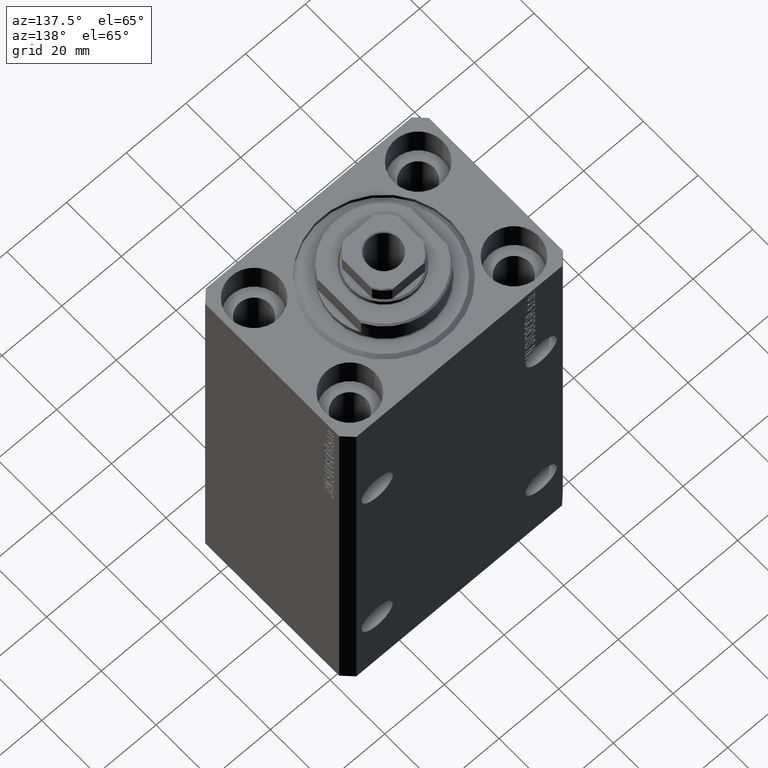
[diagram: clean part render]
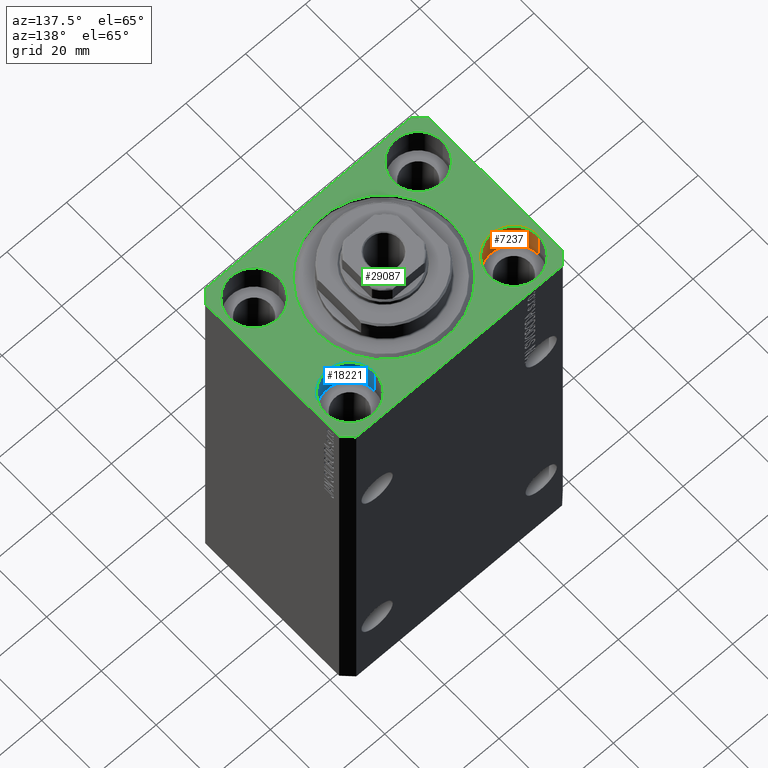
[diagram: same view with three faces highlighted in distinct colors, each labeled with its STEP entity id]
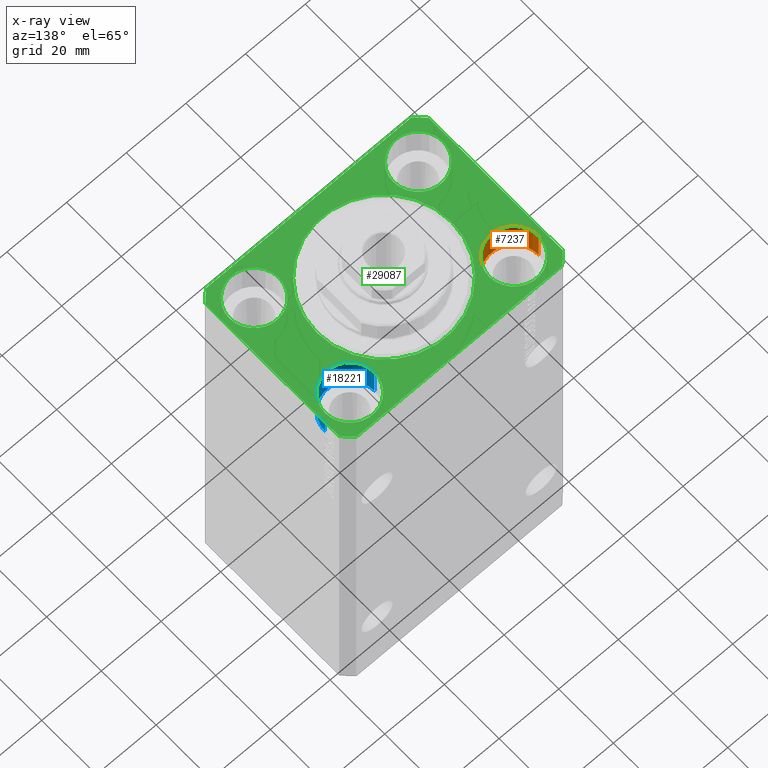
[diagram: x-ray of the same camera — body ghosted, the three highlighted faces saturated]
A machine part, auxiliary view with three faces highlighted in distinct colors.
The next image is the same camera in x-ray (body ghosted, the three faces saturated) — at least one of them is partly hidden behind the body in this view.
Their STEP definitions:

[orange] entity #7237 — the highlighted cylindrical surface (edge-blend (fillet) strip) has radius 8.25 mm, axis along (0, 0, 1).
#108 = VERTEX_POINT ( 'NONE', #33419 ) ;
#611 = CIRCLE ( 'NONE', #20070, 8.250000000000000000 ) ;
#1077 = VECTOR ( 'NONE', #43114, 1000.000000000000000 ) ;
#1183 = CYLINDRICAL_SURFACE ( 'NONE', #14915, 8.250000000000000000 ) ;
#1391 = LINE ( 'NONE', #21937, #1077 ) ;
#3877 = DIRECTION ( 'NONE',  ( 1.000000000000000000, 0.000000000000000000, 0.000000000000000000 ) ) ;
#5709 = ORIENTED_EDGE ( 'NONE', *, *, #39233, .F. ) ;
#7237 = ADVANCED_FACE ( 'NONE', ( #28927 ), #1183, .F. ) ;
#7964 = DIRECTION ( 'NONE',  ( -0.000000000000000000, -0.000000000000000000, 1.000000000000000000 ) ) ;
#8466 = DIRECTION ( 'NONE',  ( 1.000000000000000000, 0.000000000000000000, 0.000000000000000000 ) ) ;
#10649 = EDGE_LOOP ( 'NONE', ( #44533, #36818, #20490, #5709 ) ) ;
#10757 = EDGE_CURVE ( 'NONE', #28413, #15345, #611, .T. ) ;
#10841 = VECTOR ( 'NONE', #7964, 1000.000000000000000 ) ;
#11197 = DIRECTION ( 'NONE',  ( 0.000000000000000000, 0.000000000000000000, 1.000000000000000000 ) ) ;
#13598 = CARTESIAN_POINT ( 'NONE',  ( -35.75000000000000711, 17.50000000000000000, 0.000000000000000000 ) ) ;
#14915 = AXIS2_PLACEMENT_3D ( 'NONE', #22157, #18104, #3877 ) ;
#14996 = VERTEX_POINT ( 'NONE', #16409 ) ;
#15155 = AXIS2_PLACEMENT_3D ( 'NONE', #18126, #24678, #25358 ) ;
#15345 = VERTEX_POINT ( 'NONE', #24471 ) ;
#16409 = CARTESIAN_POINT ( 'NONE',  ( -19.25000000000000355, 17.50000000000000000, -11.00000000000000000 ) ) ;
#18104 = DIRECTION ( 'NONE',  ( -0.000000000000000000, -0.000000000000000000, 1.000000000000000000 ) ) ;
#18126 = CARTESIAN_POINT ( 'NONE',  ( -27.50000000000000355, 17.50000000000000000, -11.00000000000000000 ) ) ;
#20070 = AXIS2_PLACEMENT_3D ( 'NONE', #39599, #11197, #8466 ) ;
#20449 = EDGE_CURVE ( 'NONE', #108, #14996, #25298, .T. ) ;
#20490 = ORIENTED_EDGE ( 'NONE', *, *, #10757, .T. ) ;
#20495 = EDGE_CURVE ( 'NONE', #108, #28413, #28515, .T. ) ;
#21937 = CARTESIAN_POINT ( 'NONE',  ( -19.25000000000000355, 17.50000000000000000, -11.00000000000000000 ) ) ;
#22157 = CARTESIAN_POINT ( 'NONE',  ( -27.50000000000000355, 17.50000000000000000, -11.00000000000000000 ) ) ;
#24471 = CARTESIAN_POINT ( 'NONE',  ( -19.25000000000000355, 17.50000000000000000, 0.000000000000000000 ) ) ;
#24678 = DIRECTION ( 'NONE',  ( 0.000000000000000000, 0.000000000000000000, 1.000000000000000000 ) ) ;
#25298 = CIRCLE ( 'NONE', #15155, 8.250000000000000000 ) ;
#25358 = DIRECTION ( 'NONE',  ( 1.000000000000000000, 0.000000000000000000, 0.000000000000000000 ) ) ;
#28413 = VERTEX_POINT ( 'NONE', #13598 ) ;
#28515 = LINE ( 'NONE', #39102, #10841 ) ;
#28927 = FACE_OUTER_BOUND ( 'NONE', #10649, .T. ) ;
#33419 = CARTESIAN_POINT ( 'NONE',  ( -35.75000000000000711, 17.50000000000000000, -11.00000000000000000 ) ) ;
#36818 = ORIENTED_EDGE ( 'NONE', *, *, #20495, .T. ) ;
#39102 = CARTESIAN_POINT ( 'NONE',  ( -35.75000000000000711, 17.50000000000000000, -11.00000000000000000 ) ) ;
#39233 = EDGE_CURVE ( 'NONE', #14996, #15345, #1391, .T. ) ;
#39599 = CARTESIAN_POINT ( 'NONE',  ( -27.50000000000000355, 17.50000000000000000, 0.000000000000000000 ) ) ;
#43114 = DIRECTION ( 'NONE',  ( -0.000000000000000000, -0.000000000000000000, 1.000000000000000000 ) ) ;
#44533 = ORIENTED_EDGE ( 'NONE', *, *, #20449, .F. ) ;

[blue] entity #18221 — the highlighted cylindrical surface (edge-blend (fillet) strip) has radius 8.25 mm, axis along (0, 0, 1).
#815 = ORIENTED_EDGE ( 'NONE', *, *, #6433, .T. ) ;
#1554 = LINE ( 'NONE', #25055, #19229 ) ;
#6174 = CARTESIAN_POINT ( 'NONE',  ( 19.25000000000000000, 17.50000000000001066, 0.000000000000000000 ) ) ;
#6433 = EDGE_CURVE ( 'NONE', #34711, #41039, #1554, .T. ) ;
#8231 = DIRECTION ( 'NONE',  ( -0.000000000000000000, -0.000000000000000000, 1.000000000000000000 ) ) ;
#8455 = CYLINDRICAL_SURFACE ( 'NONE', #33835, 8.249999999999992895 ) ;
#9009 = EDGE_CURVE ( 'NONE', #39227, #33897, #30535, .T. ) ;
#12625 = EDGE_CURVE ( 'NONE', #34711, #39227, #43175, .T. ) ;
#16767 = DIRECTION ( 'NONE',  ( -0.000000000000000000, -0.000000000000000000, 1.000000000000000000 ) ) ;
#17966 = AXIS2_PLACEMENT_3D ( 'NONE', #40834, #23470, #44204 ) ;
#18221 = ADVANCED_FACE ( 'NONE', ( #21566 ), #8455, .F. ) ;
#19229 = VECTOR ( 'NONE', #39237, 1000.000000000000000 ) ;
#19334 = VECTOR ( 'NONE', #16767, 1000.000000000000000 ) ;
#20666 = AXIS2_PLACEMENT_3D ( 'NONE', #38193, #35027, #35251 ) ;
#21540 = ORIENTED_EDGE ( 'NONE', *, *, #12625, .F. ) ;
#21566 = FACE_OUTER_BOUND ( 'NONE', #32141, .T. ) ;
#22154 = CARTESIAN_POINT ( 'NONE',  ( 35.74999999999999289, 17.50000000000001066, -11.00000000000000000 ) ) ;
#23470 = DIRECTION ( 'NONE',  ( 0.000000000000000000, 0.000000000000000000, 1.000000000000000000 ) ) ;
#25055 = CARTESIAN_POINT ( 'NONE',  ( 19.25000000000000000, 17.50000000000001066, -11.00000000000000000 ) ) ;
#25346 = ORIENTED_EDGE ( 'NONE', *, *, #43842, .T. ) ;
#25621 = DIRECTION ( 'NONE',  ( 1.000000000000000000, 0.000000000000000000, 0.000000000000000000 ) ) ;
#27139 = CIRCLE ( 'NONE', #20666, 8.249999999999992895 ) ;
#28565 = CARTESIAN_POINT ( 'NONE',  ( 27.49999999999999645, 17.50000000000001066, -11.00000000000000000 ) ) ;
#30535 = LINE ( 'NONE', #44291, #19334 ) ;
#32141 = EDGE_LOOP ( 'NONE', ( #21540, #815, #25346, #33468 ) ) ;
#32681 = CARTESIAN_POINT ( 'NONE',  ( 19.25000000000000000, 17.50000000000001066, -11.00000000000000000 ) ) ;
#33468 = ORIENTED_EDGE ( 'NONE', *, *, #9009, .F. ) ;
#33835 = AXIS2_PLACEMENT_3D ( 'NONE', #28565, #8231, #25621 ) ;
#33897 = VERTEX_POINT ( 'NONE', #40774 ) ;
#34711 = VERTEX_POINT ( 'NONE', #32681 ) ;
#35027 = DIRECTION ( 'NONE',  ( 0.000000000000000000, 0.000000000000000000, 1.000000000000000000 ) ) ;
#35251 = DIRECTION ( 'NONE',  ( 1.000000000000000000, 0.000000000000000000, 0.000000000000000000 ) ) ;
#38193 = CARTESIAN_POINT ( 'NONE',  ( 27.49999999999999645, 17.50000000000001066, 0.000000000000000000 ) ) ;
#39227 = VERTEX_POINT ( 'NONE', #22154 ) ;
#39237 = DIRECTION ( 'NONE',  ( -0.000000000000000000, -0.000000000000000000, 1.000000000000000000 ) ) ;
#40774 = CARTESIAN_POINT ( 'NONE',  ( 35.74999999999999289, 17.50000000000001066, 0.000000000000000000 ) ) ;
#40834 = CARTESIAN_POINT ( 'NONE',  ( 27.49999999999999645, 17.50000000000001066, -11.00000000000000000 ) ) ;
#41039 = VERTEX_POINT ( 'NONE', #6174 ) ;
#43175 = CIRCLE ( 'NONE', #17966, 8.249999999999992895 ) ;
#43842 = EDGE_CURVE ( 'NONE', #41039, #33897, #27139, .T. ) ;
#44204 = DIRECTION ( 'NONE',  ( 1.000000000000000000, 0.000000000000000000, 0.000000000000000000 ) ) ;
#44291 = CARTESIAN_POINT ( 'NONE',  ( 35.74999999999999289, 17.50000000000001066, -11.00000000000000000 ) ) ;

[green] entity #29087 — the highlighted planar face has unit normal (0, 0, 1).
#366 = CARTESIAN_POINT ( 'NONE',  ( -27.50000000000000355, -17.50000000000000000, 0.000000000000000000 ) ) ;
#611 = CIRCLE ( 'NONE', #20070, 8.250000000000000000 ) ;
#1506 = CIRCLE ( 'NONE', #13034, 8.250000000000000000 ) ;
#1514 = CARTESIAN_POINT ( 'NONE',  ( -27.50000000000000355, -17.50000000000000000, 0.000000000000000000 ) ) ;
#1687 = VECTOR ( 'NONE', #28862, 1000.000000000000000 ) ;
#2468 = ORIENTED_EDGE ( 'NONE', *, *, #15636, .F. ) ;
#2538 = DIRECTION ( 'NONE',  ( 1.000000000000000000, 0.000000000000000000, -0.000000000000000000 ) ) ;
#3150 = ORIENTED_EDGE ( 'NONE', *, *, #40686, .F. ) ;
#3697 = ORIENTED_EDGE ( 'NONE', *, *, #17882, .F. ) ;
#3896 = DIRECTION ( 'NONE',  ( -0.7071067811865356934, 0.7071067811865594521, 0.000000000000000000 ) ) ;
#4288 = EDGE_LOOP ( 'NONE', ( #37916, #34695 ) ) ;
#4323 = ORIENTED_EDGE ( 'NONE', *, *, #32306, .T. ) ;
#4760 = VERTEX_POINT ( 'NONE', #19073 ) ;
#5191 = EDGE_LOOP ( 'NONE', ( #13872, #3150 ) ) ;
#5268 = FACE_BOUND ( 'NONE', #5191, .T. ) ;
#5495 = FACE_BOUND ( 'NONE', #9244, .T. ) ;
#5522 = EDGE_CURVE ( 'NONE', #19485, #40955, #28178, .T. ) ;
#5720 = ORIENTED_EDGE ( 'NONE', *, *, #31316, .T. ) ;
#5731 = VERTEX_POINT ( 'NONE', #36602 ) ;
#5930 = FACE_BOUND ( 'NONE', #15360, .T. ) ;
#5995 = VECTOR ( 'NONE', #27518, 1000.000000000000114 ) ;
#6078 = DIRECTION ( 'NONE',  ( 0.000000000000000000, 0.000000000000000000, 1.000000000000000000 ) ) ;
#6107 = EDGE_CURVE ( 'NONE', #37411, #43725, #31025, .T. ) ;
#6174 = CARTESIAN_POINT ( 'NONE',  ( 19.25000000000000000, 17.50000000000001066, 0.000000000000000000 ) ) ;
#6212 = VECTOR ( 'NONE', #31114, 1000.000000000000000 ) ;
#6509 = CIRCLE ( 'NONE', #38843, 8.249999999999992895 ) ;
#6783 = VECTOR ( 'NONE', #23186, 1000.000000000000000 ) ;
#8311 = CARTESIAN_POINT ( 'NONE',  ( 37.49999999999999289, -24.50000000000000000, 0.000000000000000000 ) ) ;
#8433 = VERTEX_POINT ( 'NONE', #37699 ) ;
#8466 = DIRECTION ( 'NONE',  ( 1.000000000000000000, 0.000000000000000000, 0.000000000000000000 ) ) ;
#8504 = DIRECTION ( 'NONE',  ( 0.000000000000000000, 0.000000000000000000, 1.000000000000000000 ) ) ;
#9244 = EDGE_LOOP ( 'NONE', ( #2468, #39018 ) ) ;
#9519 = CARTESIAN_POINT ( 'NONE',  ( 19.25000000000000000, -17.50000000000000000, 0.000000000000000000 ) ) ;
#10757 = EDGE_CURVE ( 'NONE', #28413, #15345, #611, .T. ) ;
#10941 = VERTEX_POINT ( 'NONE', #20187 ) ;
#11047 = CARTESIAN_POINT ( 'NONE',  ( -34.49999999999999289, 27.50000000000000000, 0.000000000000000000 ) ) ;
#11197 = DIRECTION ( 'NONE',  ( 0.000000000000000000, 0.000000000000000000, 1.000000000000000000 ) ) ;
#12666 = DIRECTION ( 'NONE',  ( 1.000000000000000000, 0.000000000000000000, 0.000000000000000000 ) ) ;
#12710 = ORIENTED_EDGE ( 'NONE', *, *, #20899, .T. ) ;
#13034 = AXIS2_PLACEMENT_3D ( 'NONE', #27206, #6078, #44202 ) ;
#13196 = DIRECTION ( 'NONE',  ( 0.000000000000000000, -1.000000000000000000, 0.000000000000000000 ) ) ;
#13335 = CARTESIAN_POINT ( 'NONE',  ( 27.50000000000000355, -17.50000000000000000, 0.000000000000000000 ) ) ;
#13598 = CARTESIAN_POINT ( 'NONE',  ( -35.75000000000000711, 17.50000000000000000, 0.000000000000000000 ) ) ;
#13733 = CARTESIAN_POINT ( 'NONE',  ( 0.000000000000000000, 0.000000000000000000, 0.000000000000000000 ) ) ;
#13749 = LINE ( 'NONE', #34044, #5995 ) ;
#13872 = ORIENTED_EDGE ( 'NONE', *, *, #23905, .F. ) ;
#14125 = CARTESIAN_POINT ( 'NONE',  ( -27.50000000000000355, 17.50000000000000000, 0.000000000000000000 ) ) ;
#14258 = DIRECTION ( 'NONE',  ( 0.000000000000000000, 0.000000000000000000, 1.000000000000000000 ) ) ;
#14291 = CARTESIAN_POINT ( 'NONE',  ( 37.50000000000051870, 24.49999999999995381, 0.000000000000000000 ) ) ;
#14387 = ORIENTED_EDGE ( 'NONE', *, *, #5522, .T. ) ;
#14630 = EDGE_CURVE ( 'NONE', #5731, #16826, #14970, .T. ) ;
#14760 = EDGE_LOOP ( 'NONE', ( #23920, #3697 ) ) ;
#14970 = LINE ( 'NONE', #28525, #36740 ) ;
#15345 = VERTEX_POINT ( 'NONE', #24471 ) ;
#15360 = EDGE_LOOP ( 'NONE', ( #16359, #28753 ) ) ;
#15636 = EDGE_CURVE ( 'NONE', #33897, #41039, #6509, .T. ) ;
#16077 = ORIENTED_EDGE ( 'NONE', *, *, #6107, .T. ) ;
#16080 = PLANE ( 'NONE',  #31977 ) ;
#16230 = CIRCLE ( 'NONE', #31351, 8.250000000000000000 ) ;
#16235 = AXIS2_PLACEMENT_3D ( 'NONE', #13733, #23047, #26658 ) ;
#16359 = ORIENTED_EDGE ( 'NONE', *, *, #27151, .F. ) ;
#16569 = AXIS2_PLACEMENT_3D ( 'NONE', #13335, #30260, #12666 ) ;
#16826 = VERTEX_POINT ( 'NONE', #11047 ) ;
#16840 = DIRECTION ( 'NONE',  ( 0.000000000000000000, 0.000000000000000000, 1.000000000000000000 ) ) ;
#17292 = CIRCLE ( 'NONE', #30971, 22.50000000000000355 ) ;
#17882 = EDGE_CURVE ( 'NONE', #10941, #31021, #17292, .T. ) ;
#18182 = DIRECTION ( 'NONE',  ( 1.000000000000000000, 0.000000000000000000, 0.000000000000000000 ) ) ;
#18449 = DIRECTION ( 'NONE',  ( 0.000000000000000000, 0.000000000000000000, 1.000000000000000000 ) ) ;
#19073 = CARTESIAN_POINT ( 'NONE',  ( 35.75000000000000711, -17.50000000000000000, 0.000000000000000000 ) ) ;
#19266 = FACE_OUTER_BOUND ( 'NONE', #44043, .T. ) ;
#19485 = VERTEX_POINT ( 'NONE', #37864 ) ;
#19702 = CARTESIAN_POINT ( 'NONE',  ( 0.000000000000000000, 0.000000000000000000, 0.000000000000000000 ) ) ;
#19878 = EDGE_CURVE ( 'NONE', #4760, #32123, #36023, .T. ) ;
#20070 = AXIS2_PLACEMENT_3D ( 'NONE', #39599, #11197, #8466 ) ;
#20187 = CARTESIAN_POINT ( 'NONE',  ( -22.50000000000000355, 2.755455298081545172E-15, 0.000000000000000000 ) ) ;
#20369 = DIRECTION ( 'NONE',  ( 1.000000000000000000, 0.000000000000000000, 0.000000000000000000 ) ) ;
#20666 = AXIS2_PLACEMENT_3D ( 'NONE', #38193, #35027, #35251 ) ;
#20899 = EDGE_CURVE ( 'NONE', #43725, #19485, #43306, .T. ) ;
#21219 = CARTESIAN_POINT ( 'NONE',  ( 0.000000000000000000, 0.000000000000000000, 0.000000000000000000 ) ) ;
#21870 = AXIS2_PLACEMENT_3D ( 'NONE', #14125, #16840, #27004 ) ;
#22066 = EDGE_CURVE ( 'NONE', #32123, #4760, #1506, .T. ) ;
#22103 = VECTOR ( 'NONE', #13196, 1000.000000000000000 ) ;
#22279 = DIRECTION ( 'NONE',  ( 1.000000000000000000, 0.000000000000000000, 0.000000000000000000 ) ) ;
#23047 = DIRECTION ( 'NONE',  ( 0.000000000000000000, 0.000000000000000000, 1.000000000000000000 ) ) ;
#23186 = DIRECTION ( 'NONE',  ( -0.7071067811865471286, -0.7071067811865479058, 0.000000000000000000 ) ) ;
#23324 = EDGE_CURVE ( 'NONE', #8433, #5731, #38200, .T. ) ;
#23905 = EDGE_CURVE ( 'NONE', #44004, #28968, #25388, .T. ) ;
#23920 = ORIENTED_EDGE ( 'NONE', *, *, #37286, .F. ) ;
#24408 = CARTESIAN_POINT ( 'NONE',  ( 22.50000000000000355, 0.000000000000000000, 0.000000000000000000 ) ) ;
#24421 = CARTESIAN_POINT ( 'NONE',  ( 27.49999999999999645, 17.50000000000001066, 0.000000000000000000 ) ) ;
#24471 = CARTESIAN_POINT ( 'NONE',  ( -19.25000000000000355, 17.50000000000000000, 0.000000000000000000 ) ) ;
#25307 = DIRECTION ( 'NONE',  ( 0.7071067811865483499, -0.7071067811865466846, 0.000000000000000000 ) ) ;
#25388 = CIRCLE ( 'NONE', #39752, 8.250000000000000000 ) ;
#26000 = CARTESIAN_POINT ( 'NONE',  ( -19.25000000000000355, -17.50000000000000000, 0.000000000000000000 ) ) ;
#26658 = DIRECTION ( 'NONE',  ( 1.000000000000000000, 0.000000000000000000, 0.000000000000000000 ) ) ;
#27004 = DIRECTION ( 'NONE',  ( 1.000000000000000000, 0.000000000000000000, 0.000000000000000000 ) ) ;
#27139 = CIRCLE ( 'NONE', #20666, 8.249999999999992895 ) ;
#27151 = EDGE_CURVE ( 'NONE', #15345, #28413, #36983, .T. ) ;
#27206 = CARTESIAN_POINT ( 'NONE',  ( 27.50000000000000355, -17.50000000000000000, 0.000000000000000000 ) ) ;
#27518 = DIRECTION ( 'NONE',  ( 0.7071067811865474617, 0.7071067811865474617, 0.000000000000000000 ) ) ;
#27674 = DIRECTION ( 'NONE',  ( 0.000000000000000000, 0.000000000000000000, 1.000000000000000000 ) ) ;
#28178 = LINE ( 'NONE', #34494, #6212 ) ;
#28333 = CARTESIAN_POINT ( 'NONE',  ( 34.49999999999999289, -27.49999999999999645, 0.000000000000000000 ) ) ;
#28413 = VERTEX_POINT ( 'NONE', #13598 ) ;
#28525 = CARTESIAN_POINT ( 'NONE',  ( 34.50000000000056843, 27.50000000000000000, 0.000000000000000000 ) ) ;
#28753 = ORIENTED_EDGE ( 'NONE', *, *, #10757, .F. ) ;
#28862 = DIRECTION ( 'NONE',  ( 1.076236605503979380E-14, 1.000000000000000000, 0.000000000000000000 ) ) ;
#28968 = VERTEX_POINT ( 'NONE', #42718 ) ;
#29087 = ADVANCED_FACE ( 'NONE', ( #5268, #33237, #5495, #5930, #36396, #19266 ), #16080, .T. ) ;
#30260 = DIRECTION ( 'NONE',  ( 0.000000000000000000, 0.000000000000000000, 1.000000000000000000 ) ) ;
#30622 = LINE ( 'NONE', #44376, #6783 ) ;
#30971 = AXIS2_PLACEMENT_3D ( 'NONE', #21219, #8504, #22279 ) ;
#31021 = VERTEX_POINT ( 'NONE', #24408 ) ;
#31025 = LINE ( 'NONE', #44330, #22103 ) ;
#31114 = DIRECTION ( 'NONE',  ( 1.000000000000000000, 0.000000000000000000, 0.000000000000000000 ) ) ;
#31316 = EDGE_CURVE ( 'NONE', #40955, #34709, #13749, .T. ) ;
#31351 = AXIS2_PLACEMENT_3D ( 'NONE', #1514, #18449, #32214 ) ;
#31977 = AXIS2_PLACEMENT_3D ( 'NONE', #19702, #33451, #2538 ) ;
#32123 = VERTEX_POINT ( 'NONE', #9519 ) ;
#32128 = DIRECTION ( 'NONE',  ( -1.000000000000000000, 0.000000000000000000, 0.000000000000000000 ) ) ;
#32214 = DIRECTION ( 'NONE',  ( 1.000000000000000000, 0.000000000000000000, 0.000000000000000000 ) ) ;
#32306 = EDGE_CURVE ( 'NONE', #34709, #8433, #42819, .T. ) ;
#32459 = ORIENTED_EDGE ( 'NONE', *, *, #33857, .T. ) ;
#33237 = FACE_BOUND ( 'NONE', #4288, .T. ) ;
#33451 = DIRECTION ( 'NONE',  ( 0.000000000000000000, 0.000000000000000000, 1.000000000000000000 ) ) ;
#33857 = EDGE_CURVE ( 'NONE', #16826, #37411, #30622, .T. ) ;
#33897 = VERTEX_POINT ( 'NONE', #40774 ) ;
#34044 = CARTESIAN_POINT ( 'NONE',  ( 34.49999999999999289, -27.49999999999999645, 0.000000000000000000 ) ) ;
#34494 = CARTESIAN_POINT ( 'NONE',  ( -34.49999999999998579, -27.49999999999999645, 0.000000000000000000 ) ) ;
#34637 = VECTOR ( 'NONE', #25307, 1000.000000000000000 ) ;
#34695 = ORIENTED_EDGE ( 'NONE', *, *, #22066, .F. ) ;
#34709 = VERTEX_POINT ( 'NONE', #42608 ) ;
#35027 = DIRECTION ( 'NONE',  ( 0.000000000000000000, 0.000000000000000000, 1.000000000000000000 ) ) ;
#35251 = DIRECTION ( 'NONE',  ( 1.000000000000000000, 0.000000000000000000, 0.000000000000000000 ) ) ;
#35753 = ORIENTED_EDGE ( 'NONE', *, *, #14630, .T. ) ;
#36023 = CIRCLE ( 'NONE', #16569, 8.250000000000000000 ) ;
#36396 = FACE_BOUND ( 'NONE', #14760, .T. ) ;
#36602 = CARTESIAN_POINT ( 'NONE',  ( 34.50000000000056843, 27.50000000000000000, 0.000000000000000000 ) ) ;
#36740 = VECTOR ( 'NONE', #32128, 1000.000000000000000 ) ;
#36983 = CIRCLE ( 'NONE', #21870, 8.250000000000000000 ) ;
#37286 = EDGE_CURVE ( 'NONE', #31021, #10941, #40758, .T. ) ;
#37411 = VERTEX_POINT ( 'NONE', #42130 ) ;
#37699 = CARTESIAN_POINT ( 'NONE',  ( 37.50000000000051870, 24.49999999999995381, 0.000000000000000000 ) ) ;
#37864 = CARTESIAN_POINT ( 'NONE',  ( -34.49999999999998579, -27.49999999999999645, 0.000000000000000000 ) ) ;
#37916 = ORIENTED_EDGE ( 'NONE', *, *, #19878, .F. ) ;
#38193 = CARTESIAN_POINT ( 'NONE',  ( 27.49999999999999645, 17.50000000000001066, 0.000000000000000000 ) ) ;
#38200 = LINE ( 'NONE', #14291, #42655 ) ;
#38843 = AXIS2_PLACEMENT_3D ( 'NONE', #24421, #14258, #20369 ) ;
#39018 = ORIENTED_EDGE ( 'NONE', *, *, #43842, .F. ) ;
#39599 = CARTESIAN_POINT ( 'NONE',  ( -27.50000000000000355, 17.50000000000000000, 0.000000000000000000 ) ) ;
#39752 = AXIS2_PLACEMENT_3D ( 'NONE', #366, #27674, #18182 ) ;
#40014 = ORIENTED_EDGE ( 'NONE', *, *, #23324, .T. ) ;
#40686 = EDGE_CURVE ( 'NONE', #28968, #44004, #16230, .T. ) ;
#40758 = CIRCLE ( 'NONE', #16235, 22.50000000000000355 ) ;
#40774 = CARTESIAN_POINT ( 'NONE',  ( 35.74999999999999289, 17.50000000000001066, 0.000000000000000000 ) ) ;
#40955 = VERTEX_POINT ( 'NONE', #28333 ) ;
#41039 = VERTEX_POINT ( 'NONE', #6174 ) ;
#42130 = CARTESIAN_POINT ( 'NONE',  ( -37.49999999999999289, 24.50000000000000000, 0.000000000000000000 ) ) ;
#42430 = CARTESIAN_POINT ( 'NONE',  ( -37.49999999999999289, -24.50000000000000000, 0.000000000000000000 ) ) ;
#42608 = CARTESIAN_POINT ( 'NONE',  ( 37.49999999999999289, -24.50000000000000000, 0.000000000000000000 ) ) ;
#42655 = VECTOR ( 'NONE', #3896, 1000.000000000000114 ) ;
#42718 = CARTESIAN_POINT ( 'NONE',  ( -35.75000000000000711, -17.50000000000000000, 0.000000000000000000 ) ) ;
#42819 = LINE ( 'NONE', #8311, #1687 ) ;
#43306 = LINE ( 'NONE', #42430, #34637 ) ;
#43725 = VERTEX_POINT ( 'NONE', #44289 ) ;
#43842 = EDGE_CURVE ( 'NONE', #41039, #33897, #27139, .T. ) ;
#44004 = VERTEX_POINT ( 'NONE', #26000 ) ;
#44043 = EDGE_LOOP ( 'NONE', ( #35753, #32459, #16077, #12710, #14387, #5720, #4323, #40014 ) ) ;
#44202 = DIRECTION ( 'NONE',  ( 1.000000000000000000, 0.000000000000000000, 0.000000000000000000 ) ) ;
#44289 = CARTESIAN_POINT ( 'NONE',  ( -37.49999999999999289, -24.50000000000000000, 0.000000000000000000 ) ) ;
#44330 = CARTESIAN_POINT ( 'NONE',  ( -37.49999999999999289, 24.50000000000000000, 0.000000000000000000 ) ) ;
#44376 = CARTESIAN_POINT ( 'NONE',  ( -34.49999999999999289, 27.50000000000000000, 0.000000000000000000 ) ) ;